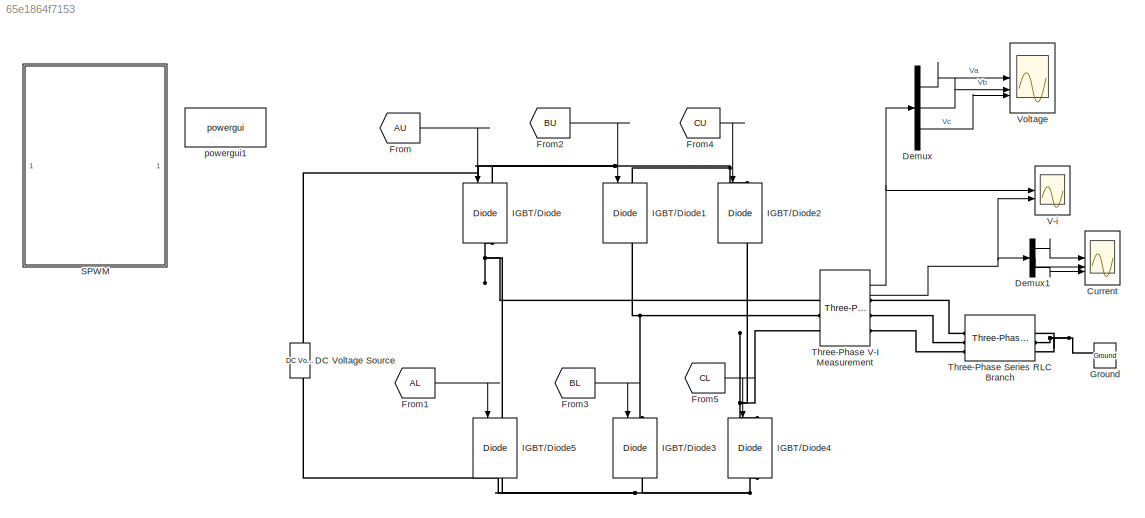
MODEL slx_65e1864f7153
KIND model
CONFIG AbsTol = auto
CONFIG EnableMultiTasking = off
CONFIG FixedStep = auto
CONFIG MaxStep = auto
CONFIG MinStep = auto
CONFIG RelTol = 1e-6
CONFIG SampleTimeConstraint = Unconstrained
CONFIG SolverName = ode23t
CONFIG StartTime = 0.0
CONFIG StopTime = 0.1
BLOCK [Scope] Current
  Floating = off
  NumInputPorts = 3
  ScopeSpecificationString = Simulink.scopes.TimeScopeBlockCfg('CurrentConfiguration', extmgr.ConfigurationSet(extmgr.Configuration('Core','General UI',true,'FigureColor',[0.941176470588235 0.941176470588235 0.941176470588235]),extmgr.Configuration('Core','Source UI',true),extmgr.Configuration('Sources','WiredSimulink',true,'DataLoggingVariableName','Current','DataLogging',true),extmgr.Configuration('Visuals','Time Domain',tr...<+3253ch>
BLOCK [Reference] DC Voltage Source  REF=spsDCVoltageSourceLib/DC Voltage Source
  LibrarySourceBlock = sps_lib/Sources/DC Voltage Source
  NameLocation = right
  SourceBlock = spsDCVoltageSourceLib/DC Voltage Source
  SourceType = DC Voltage Source
BLOCK [Demux] Demux
  Outputs = 3
BLOCK [Demux] Demux1
  Outputs = 3
BLOCK [From] From
  GotoTag = AU
  TagVisibility = global
BLOCK [From] From1
  GotoTag = AL
  TagVisibility = global
BLOCK [From] From2
  GotoTag = BU
  TagVisibility = global
BLOCK [From] From3
  GotoTag = BL
  TagVisibility = global
BLOCK [From] From4
  GotoTag = CU
  TagVisibility = global
BLOCK [From] From5
  GotoTag = CL
  TagVisibility = global
BLOCK [Reference] Ground  REF=spsGroundLib/Ground
  LibrarySourceBlock = sps_lib/Utilities/Ground
  NameLocation = right
  SourceBlock = spsGroundLib/Ground
  SourceType = Ground
BLOCK [Reference] IGBT//Diode  REF=spsIGBTDiodeLib/IGBT//Diode
  LibrarySourceBlock = sps_lib/Power Electronics/IGBT//Diode
  NameLocation = left
  SourceBlock = spsIGBTDiodeLib/IGBT//Diode
  SourceType = IGBT/Diode
BLOCK [Reference] IGBT//Diode1  REF=spsIGBTDiodeLib/IGBT//Diode
  LibrarySourceBlock = sps_lib/Power Electronics/IGBT//Diode
  NameLocation = left
  SourceBlock = spsIGBTDiodeLib/IGBT//Diode
  SourceType = IGBT/Diode
BLOCK [Reference] IGBT//Diode2  REF=spsIGBTDiodeLib/IGBT//Diode
  LibrarySourceBlock = sps_lib/Power Electronics/IGBT//Diode
  NameLocation = left
  SourceBlock = spsIGBTDiodeLib/IGBT//Diode
  SourceType = IGBT/Diode
BLOCK [Reference] IGBT//Diode3  REF=spsIGBTDiodeLib/IGBT//Diode
  LibrarySourceBlock = sps_lib/Power Electronics/IGBT//Diode
  NameLocation = left
  SourceBlock = spsIGBTDiodeLib/IGBT//Diode
  SourceType = IGBT/Diode
BLOCK [Reference] IGBT//Diode4  REF=spsIGBTDiodeLib/IGBT//Diode
  LibrarySourceBlock = sps_lib/Power Electronics/IGBT//Diode
  NameLocation = left
  SourceBlock = spsIGBTDiodeLib/IGBT//Diode
  SourceType = IGBT/Diode
BLOCK [Reference] IGBT//Diode5  REF=spsIGBTDiodeLib/IGBT//Diode
  LibrarySourceBlock = sps_lib/Power Electronics/IGBT//Diode
  NameLocation = left
  SourceBlock = spsIGBTDiodeLib/IGBT//Diode
  SourceType = IGBT/Diode
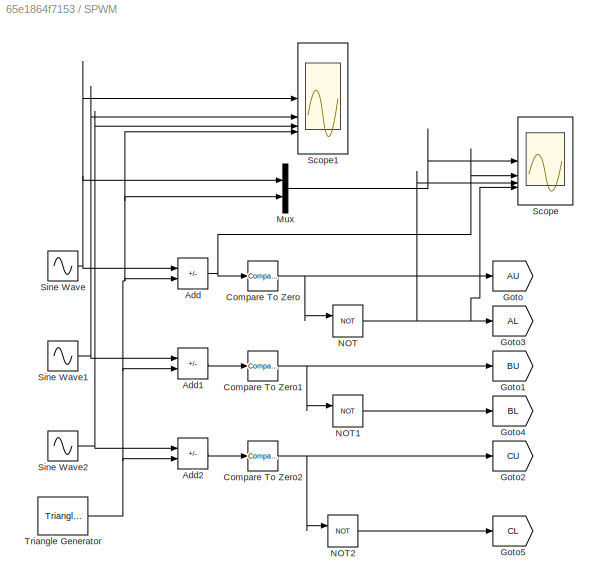
BLOCK [SubSystem] SPWM
BLOCK [Sum] SPWM/Add
  IconShape = rectangular
  Inputs = +-
BLOCK [Sum] SPWM/Add1
  IconShape = rectangular
  Inputs = +-
BLOCK [Sum] SPWM/Add2
  IconShape = rectangular
  Inputs = +-
BLOCK [Reference] SPWM/Compare To Zero  REF=simulink/Logic and Bit
Operations/Compare
To Zero
  SourceBlock = simulink/Logic and Bit\nOperations/Compare\nTo Zero
  SourceType = Compare To Zero
BLOCK [Reference] SPWM/Compare To Zero1  REF=simulink/Logic and Bit
Operations/Compare
To Zero
  SourceBlock = simulink/Logic and Bit\nOperations/Compare\nTo Zero
  SourceType = Compare To Zero
BLOCK [Reference] SPWM/Compare To Zero2  REF=simulink/Logic and Bit
Operations/Compare
To Zero
  SourceBlock = simulink/Logic and Bit\nOperations/Compare\nTo Zero
  SourceType = Compare To Zero
BLOCK [Goto] SPWM/Goto
  GotoTag = AU
  TagVisibility = global
BLOCK [Goto] SPWM/Goto1
  GotoTag = BU
  TagVisibility = global
BLOCK [Goto] SPWM/Goto2
  GotoTag = CU
  TagVisibility = global
BLOCK [Goto] SPWM/Goto3
  GotoTag = AL
  TagVisibility = global
BLOCK [Goto] SPWM/Goto4
  GotoTag = BL
  TagVisibility = global
BLOCK [Goto] SPWM/Goto5
  GotoTag = CL
  TagVisibility = global
BLOCK [Mux] SPWM/Mux
  DisplayOption = bar
  Inputs = 2
BLOCK [Logic] SPWM/NOT
  AllPortsSameDT = off
  Operator = NOT
  OutDataTypeStr = boolean
BLOCK [Logic] SPWM/NOT1
  AllPortsSameDT = off
  Operator = NOT
  OutDataTypeStr = boolean
BLOCK [Logic] SPWM/NOT2
  AllPortsSameDT = off
  Operator = NOT
  OutDataTypeStr = boolean
BLOCK [Scope] SPWM/Scope
  Floating = off
  NumInputPorts = 4
  ScopeSpecificationString = Simulink.scopes.TimeScopeBlockCfg('CurrentConfiguration', extmgr.ConfigurationSet(extmgr.Configuration('Core','General UI',true),extmgr.Configuration('Core','Source UI',true),extmgr.Configuration('Sources','WiredSimulink',true,'DataLoggingVariableName','ScopeData1'),extmgr.Configuration('Visuals','Time Domain',true,'SerializedDisplays',{struct('MinYLimReal','-1.25','MaxYLimReal','1.25','YLabelReal...<+3518ch>
BLOCK [Scope] SPWM/Scope1
  Floating = off
  NumInputPorts = 4
  ScopeSpecificationString = Simulink.scopes.TimeScopeBlockCfg('CurrentConfiguration', extmgr.ConfigurationSet(extmgr.Configuration('Core','General UI',true),extmgr.Configuration('Core','Source UI',true),extmgr.Configuration('Sources','WiredSimulink',true,'DataLoggingVariableName','ScopeData1'),extmgr.Configuration('Visuals','Time Domain',true,'SerializedDisplays',{struct('MinYLimReal','-1.25','MaxYLimReal','1.25','YLabelReal...<+3513ch>
BLOCK [Sin] SPWM/Sine Wave
  Frequency = 2*pi*50
  SampleTime = 0
BLOCK [Sin] SPWM/Sine Wave1
  Frequency = 2*pi*50
  Phase = 2*pi/3
  SampleTime = 0
BLOCK [Sin] SPWM/Sine Wave2
  Frequency = 2*pi*50
  Phase = 4*pi/3
  SampleTime = 0
BLOCK [Reference] SPWM/Triangle Generator  REF=spsTriangleGeneratorLib/Triangle
Generator
  LibrarySourceBlock = sps_lib/Sources/Signal Generator Sources/Triangle\nGenerator
  SourceBlock = spsTriangleGeneratorLib/Triangle\nGenerator
  SourceType = Triangle Generator
BLOCK [Reference] Three-Phase Series RLC Branch  REF=spsThreePhaseSeriesRLCBranchLib/Three-Phase
Series RLC Branch
  AttributesFormatString = \n
  LibrarySourceBlock = sps_lib/Passives/Three-Phase\nSeries RLC Branch
  SourceBlock = spsThreePhaseSeriesRLCBranchLib/Three-Phase\nSeries RLC Branch
  SourceType = Three-Phase Series RLC Branch
BLOCK [Reference] Three-Phase V-I Measurement  REF=spsThreePhaseVIMeasurementLib/Three-Phase
V-I Measurement
  LibrarySourceBlock = sps_lib/Sensors and Measurements/Three-Phase\nV-I Measurement
  SourceBlock = spsThreePhaseVIMeasurementLib/Three-Phase\nV-I Measurement
  SourceType = Three-Phase VI Measurement
BLOCK [Scope] V-i
  Floating = off
  NumInputPorts = 2
  ScopeSpecificationString = Simulink.scopes.TimeScopeBlockCfg('CurrentConfiguration', extmgr.ConfigurationSet(extmgr.Configuration('Core','General UI',true),extmgr.Configuration('Core','Source UI',true),extmgr.Configuration('Sources','WiredSimulink',true,'DataLoggingVariableName','ScopeData2'),extmgr.Configuration('Visuals','Time Domain',true,'SerializedDisplays',{struct('MinYLimReal','-366.30036','MaxYLimReal','366.30036','...<+2338ch>
BLOCK [Scope] Voltage
  Floating = off
  NumInputPorts = 3
  ScopeSpecificationString = Simulink.scopes.TimeScopeBlockCfg('CurrentConfiguration', extmgr.ConfigurationSet(extmgr.Configuration('Core','General UI',true,'FigureColor',[0.941176470588235 0.941176470588235 0.941176470588235]),extmgr.Configuration('Core','Source UI',true),extmgr.Configuration('Sources','WiredSimulink',true,'DataLoggingVariableName','Voltage','DataLogging',true),extmgr.Configuration('Visuals','Time Domain',tr...<+4063ch>
BLOCK [Reference] powergui1  REF=sps_lib/powergui
  Priority = 1
  SourceBlock = sps_lib/powergui
  SourceType = PSB option menu block
LINE Demux1:1 -> Current:1
LINE Demux1:2 -> Current:2
LINE Demux1:3 -> Current:3
LINE Demux:1 -> Voltage:1
LINE Demux:2 -> Voltage:2
LINE Demux:3 -> Voltage:3
LINE From1:1 -> IGBT//Diode5:1
LINE From2:1 -> IGBT//Diode1:1
LINE From3:1 -> IGBT//Diode3:1
LINE From4:1 -> IGBT//Diode2:1
LINE From5:1 -> IGBT//Diode4:1
LINE From:1 -> IGBT//Diode:1
LINE SPWM/Add1:1 -> SPWM/Compare To Zero1:1
LINE SPWM/Add2:1 -> SPWM/Compare To Zero2:1
NET SPWM/Add:1 -> SPWM/Compare To Zero:1, SPWM/Scope:2
NET SPWM/Compare To Zero1:1 -> SPWM/Goto1:1, SPWM/NOT1:1
NET SPWM/Compare To Zero2:1 -> SPWM/Goto2:1, SPWM/NOT2:1
NET SPWM/Compare To Zero:1 -> SPWM/Goto:1, SPWM/NOT:1
LINE SPWM/Mux:1 -> SPWM/Scope:1
LINE SPWM/NOT1:1 -> SPWM/Goto4:1
LINE SPWM/NOT2:1 -> SPWM/Goto5:1
NET SPWM/NOT:1 -> SPWM/Goto3:1, SPWM/Scope:3, SPWM/Scope:4
NET SPWM/Sine Wave1:1 -> SPWM/Add1:1, SPWM/Scope1:2
NET SPWM/Sine Wave2:1 -> SPWM/Add2:1, SPWM/Scope1:3
NET SPWM/Sine Wave:1 -> SPWM/Add:1, SPWM/Mux:1, SPWM/Scope1:1
NET SPWM/Triangle Generator:1 -> SPWM/Add1:2, SPWM/Add2:2, SPWM/Add:2, SPWM/Mux:2, SPWM/Scope1:4
NET Three-Phase V-I Measurement:1 -> Demux:1, V-i:1
NET Three-Phase V-I Measurement:2 -> Demux1:1, V-i:2
PNET net1: DC Voltage Source:LConn1 -- IGBT//Diode3:RConn1 -- IGBT//Diode4:RConn1 -- IGBT//Diode5:RConn1
PNET net2: DC Voltage Source:RConn1 -- IGBT//Diode1:LConn1 -- IGBT//Diode2:LConn1 -- IGBT//Diode:LConn1
PNET net3: Ground:LConn1 -- Three-Phase Series RLC Branch:RConn1 -- Three-Phase Series RLC Branch:RConn2 -- Three-Phase Series RLC Branch:RConn3
PNET net4: IGBT//Diode1:RConn1 -- IGBT//Diode3:LConn1 -- Three-Phase V-I Measurement:LConn2
PNET net5: IGBT//Diode2:RConn1 -- IGBT//Diode4:LConn1 -- Three-Phase V-I Measurement:LConn3
PNET net6: IGBT//Diode5:LConn1 -- IGBT//Diode:RConn1 -- Three-Phase V-I Measurement:LConn1
PLINE Three-Phase Series RLC Branch:LConn1 -- Three-Phase V-I Measurement:RConn1
PLINE Three-Phase Series RLC Branch:LConn2 -- Three-Phase V-I Measurement:RConn2
PLINE Three-Phase Series RLC Branch:LConn3 -- Three-Phase V-I Measurement:RConn3
note: NET lines group one-source signal fan-out (src -> all destinations, sorted); 1:1 wires keep LINE; PNET lines group multi-terminal physical nets as a canonical sorted terminal list (undirected conserving connections); 2-terminal nets keep the pairwise PLINE form
